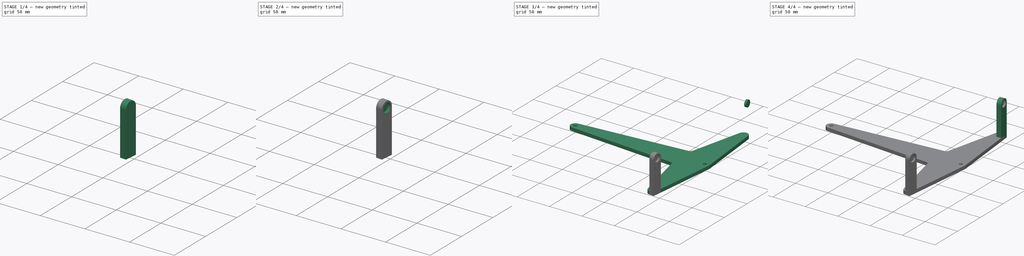
[diagram: build sequence overview — one tinted view per stage of 4, left to right]
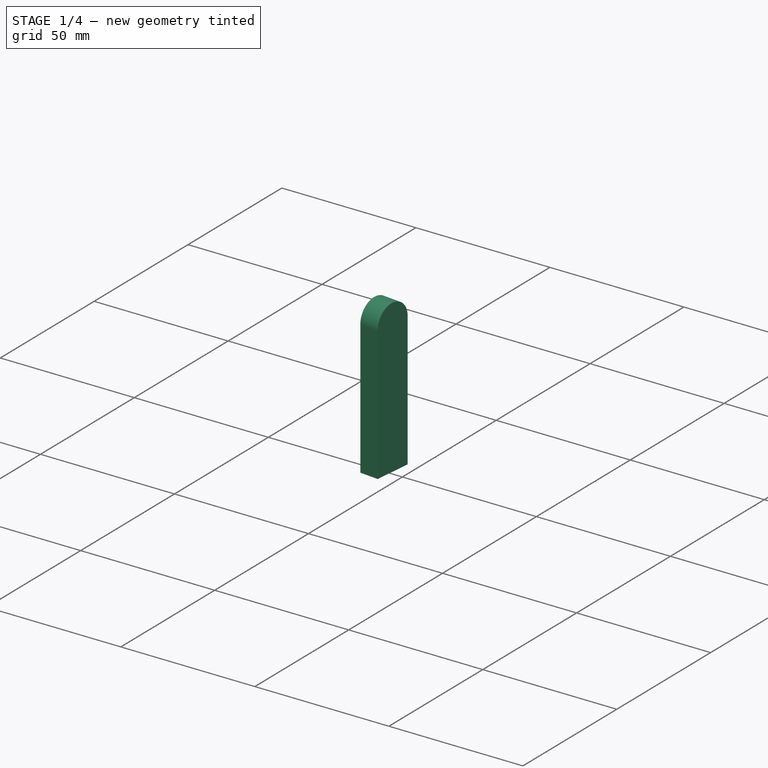
[diagram: stage 1 of 4 — iso view after this stage's code; geometry added in this stage tinted green]
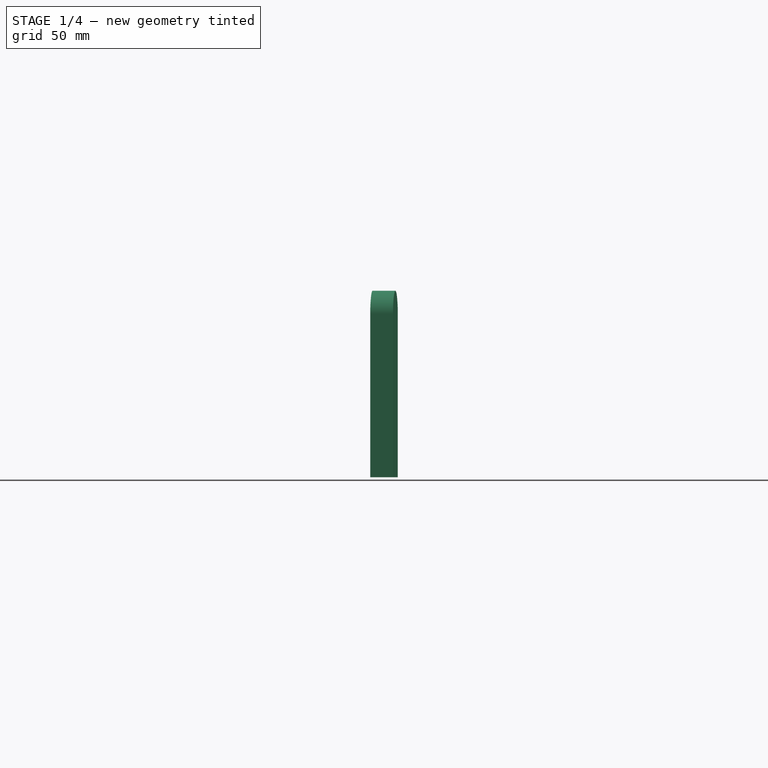
[diagram: stage 1 of 4 — front view after this stage's code; geometry added in this stage tinted green]
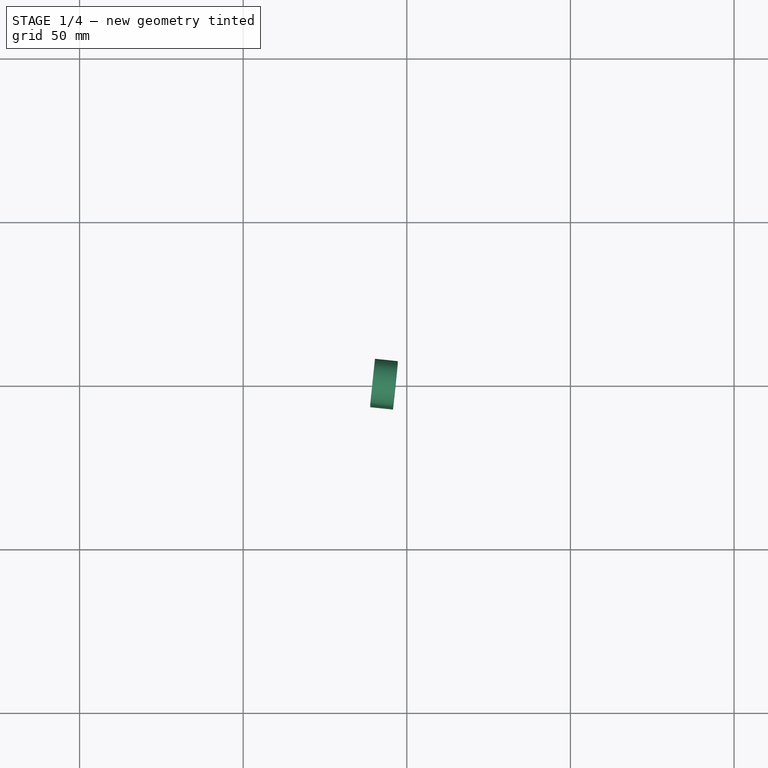
[diagram: stage 1 of 4 — top view after this stage's code; geometry added in this stage tinted green]
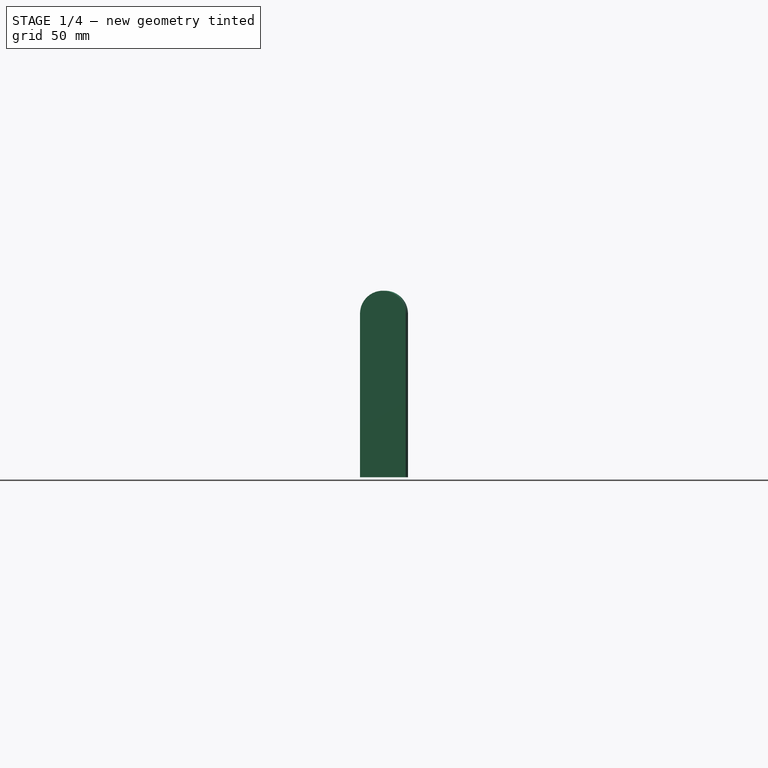
[diagram: stage 1 of 4 — right view after this stage's code; geometry added in this stage tinted green]
FCSTD DOCUMENT  (FreeCAD 0.21R33771 (Git))
Label: SFT-Mk5-Bellcrank
License: Public Domain
LicenseURL: https://en.wikipedia.org/wiki/Public_domain
objects: Sketcher::SketchObject×5, Part::Extrusion×5, PartDesign::Line×3, Part::Cut×2, Part::MultiFuse×2, PartDesign::CoordinateSystem×1, App::Part×1
note: 18 computed .brp shape members not serialized (recipe doc carries the construction recipe); baked Part::Feature solids carry a one-line shape summary decoded from their .brp

FEATURE [PartDesign::CoordinateSystem] LCS_Origin  label="Axle AP"
  AttacherType = Attacher::AttachEngine3D
  MapMode = 2
  Support = -> [X_Axis]
FEATURE [Sketcher::SketchObject] Bellcrank_Profile  label="Bellcrank Profile"
  FullyConstrained = true
  Support = -> [XY_Plane]
  sketch-geometry (17):
    g0: LineSegment StartX=0 StartY=0 StartZ=0 EndX=-10.4528 EndY=99.4522 EndZ=0
    g1: LineSegment StartX=0 StartY=0 StartZ=0 EndX=-10.4528 EndY=-99.4522 EndZ=0
    g2: LineSegment StartX=0 StartY=0 StartZ=0 EndX=-200 EndY=0 EndZ=0
    g3: ArcOfCircle CenterX=-200 CenterY=0 CenterZ=0 NormalX=0 NormalY=0 NormalZ=1 AngleXU=0 Radius=7 StartAngle=1.65162 EndAngle=4.63156
    g4: ArcOfCircle CenterX=-10.4528 CenterY=-99.4522 CenterZ=0 NormalX=0 NormalY=0 NormalZ=1 AngleXU=0 Radius=7 StartAngle=3.36901 EndAngle=6.17885
    g5: ArcOfCircle CenterX=-10.4528 CenterY=99.4522 CenterZ=0 NormalX=0 NormalY=0 NormalZ=1 AngleXU=0 Radius=7 StartAngle=0.104339 EndAngle=2.91417
    g6: LineSegment StartX=7 StartY=0 StartZ=0 EndX=-3.49092 EndY=-100.181 EndZ=0
    g7: LineSegment StartX=7 StartY=0 StartZ=0 EndX=-3.49092 EndY=100.181 EndZ=0
    g8: Circle CenterX=0 CenterY=0 CenterZ=0 NormalX=0 NormalY=0 NormalZ=1 AngleXU=0 Radius=2.6
    g9: Circle CenterX=-200 CenterY=0 CenterZ=0 NormalX=0 NormalY=0 NormalZ=1 AngleXU=0 Radius=2.6
    g10: LineSegment StartX=-40 StartY=25 StartZ=0 EndX=-40 EndY=-25 EndZ=0
    g11: ArcOfCircle CenterX=-40 CenterY=25 CenterZ=0 NormalX=0 NormalY=0 NormalZ=1 AngleXU=0 Radius=5 StartAngle=4.79322 EndAngle=6.05577
    g12: ArcOfCircle CenterX=-40 CenterY=-25 CenterZ=0 NormalX=0 NormalY=0 NormalZ=1 AngleXU=0 Radius=5 StartAngle=0.22742 EndAngle=1.48997
    g13: LineSegment StartX=-35.1287 StartY=23.8727 StartZ=0 EndX=-17.2726 EndY=101.03 EndZ=0
    g14: LineSegment StartX=-39.5963 StartY=20.0163 StartZ=0 EndX=-200.565 EndY=6.97715 EndZ=0
    g15: LineSegment StartX=-200.565 StartY=-6.97715 StartZ=0 EndX=-39.5963 EndY=-20.0163 EndZ=0
    g16: LineSegment StartX=-35.1287 StartY=-23.8727 StartZ=0 EndX=-17.2726 EndY=-101.03 EndZ=0
  constraints (40):
    c: Coincident(g0,g-1)
    c: Coincident(g1,g0)
    c: Coincident(g2,g0)
    c: PointOnObject(g2,g-1)
    c: DistanceX(g2,g2) = 200
    c: Distance(g0) = 100
    c: Equal(g0,g1)
    c: Angle(g2,g1) = 1.46608
    c: Angle(g0,g2) = 1.46608
    c: Coincident(g3,g2)
    c: Coincident(g4,g1)
    c: Radius(g3) = 7
    c: Equal(g3,g4)
    c: Coincident(g5,g0)
    c: Coincident(g7,g6)
    c: PointOnObject(g6,g-1)
    c: DistanceX(g0,g6) = 7
    c: Equal(g5,g3)
    c: Coincident(g8,g0)
    c: Radius(g8) = 2.6
    c: Coincident(g9,g3)
    c: Radius(g9) = 2.6
    c: Vertical(g10)
    c: DistanceX(g10) = -40
    c: Coincident(g11,g10)
    c: Coincident(g12,g10)
    c: Equal(g12,g11)
    c: Radius(g12) = 5
    c: Tangent(g16,g12) = 1.5708
    c: Tangent(g15,g12) = 1.5708
    c: Tangent(g15,g3) = -1.5708
    c: Tangent(g14,g3) = -1.5708
    c: Tangent(g14,g11) = 1.5708
    c: Tangent(g13,g11) = -1.5708
    c: Tangent(g13,g5) = 1.5708
    c: Tangent(g16,g4) = -1.5708
    c: Tangent(g6,g4) = 1.5708
    c: Tangent(g7,g5) = -1.5708
    c: DistanceY(g10,g10) = 50
    c: DistanceY(g11) = 25
FEATURE [Part::Extrusion] Extrude  label="Base Pad"
  Base = -> Bellcrank_Profile
  Dir = (0,0,1)
  DirMode = 2
  FaceMakerClass = Part::FaceMakerBullseye
  LengthFwd = 5
  LengthRev = 0
  Solid = true
  Symmetric = false
FEATURE [Sketcher::SketchObject] Sketch002  label="Mag Mount profile 2"
  FullyConstrained = true
  MapMode = 5
  Placement = pos=(6.92407,-0.725084,0) rot=(0.617484,0.556198,0.556198;2.03524rad)
  Support = -> [Extrude]
  expr: Constraints[5] = MagMount_profile.Constraints[6]
  expr: Constraints[6] = MagMount_profile.Constraints[7]
  sketch-geometry (4):
    g0: LineSegment StartX=-93 StartY=0 StartZ=0 EndX=-107 EndY=0 EndZ=0
    g1: LineSegment StartX=-107 StartY=0 StartZ=0 EndX=-107 EndY=50 EndZ=0
    g2: LineSegment StartX=-93 StartY=50 StartZ=0 EndX=-93 EndY=0 EndZ=0
    g3: ArcOfCircle CenterX=-100 CenterY=50 CenterZ=0 NormalX=0 NormalY=0 NormalZ=1 AngleXU=0 Radius=7 StartAngle=4e-16 EndAngle=3.14159
  constraints (11):
    c: Coincident(g0,g1)
    c: Coincident(g2,g0)
    c: Horizontal(g0)
    c: Vertical(g1)
    c: Vertical(g2)
    c: Radius(g3) = 7
    c: DistanceY(g3) = 50
    c: Tangent(g3,g2) = 1.5708
    c: Tangent(g3,g1) = 1.5708
    c: PointOnObject(g0,g-1)
    c: DistanceX(g0) = -107
FEATURE [Part::Extrusion] Extrude005  label="Mag Mount 2"
  Base = -> Sketch002
  Dir = (0.994562,-0.10415,0)
  DirMode = 2
  FaceMakerClass = Part::FaceMakerBullseye
  LengthFwd = 7
  LengthRev = 0
  Reversed = true
  Solid = true
  Symmetric = false
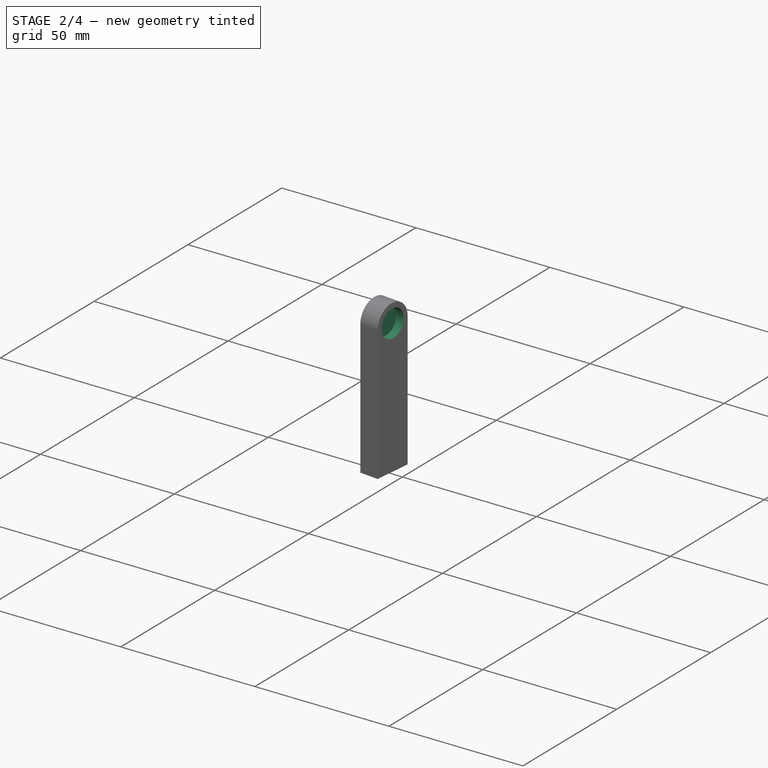
[diagram: stage 2 of 4 — iso view after this stage's code; geometry added in this stage tinted green]
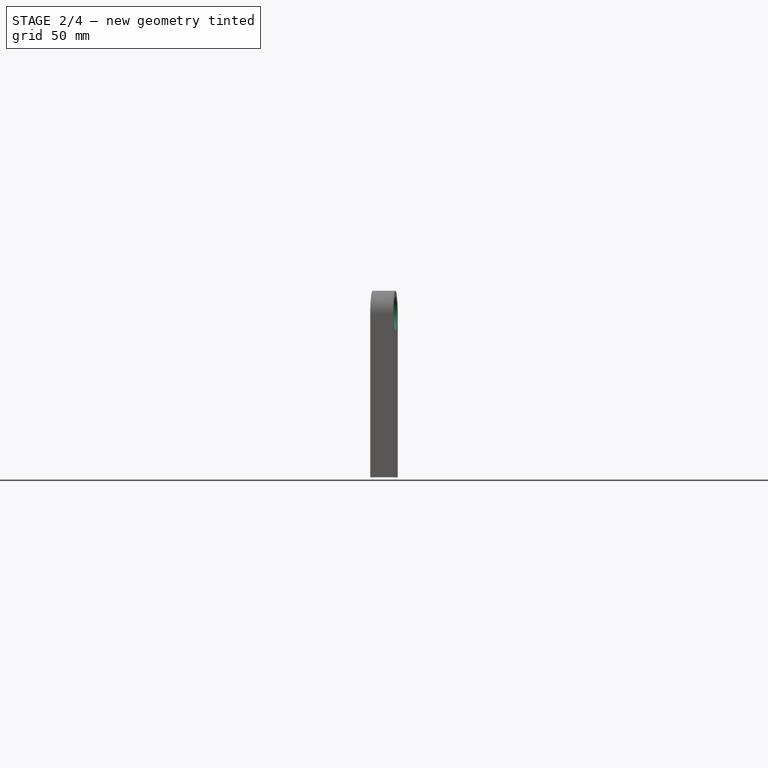
[diagram: stage 2 of 4 — front view after this stage's code; geometry added in this stage tinted green]
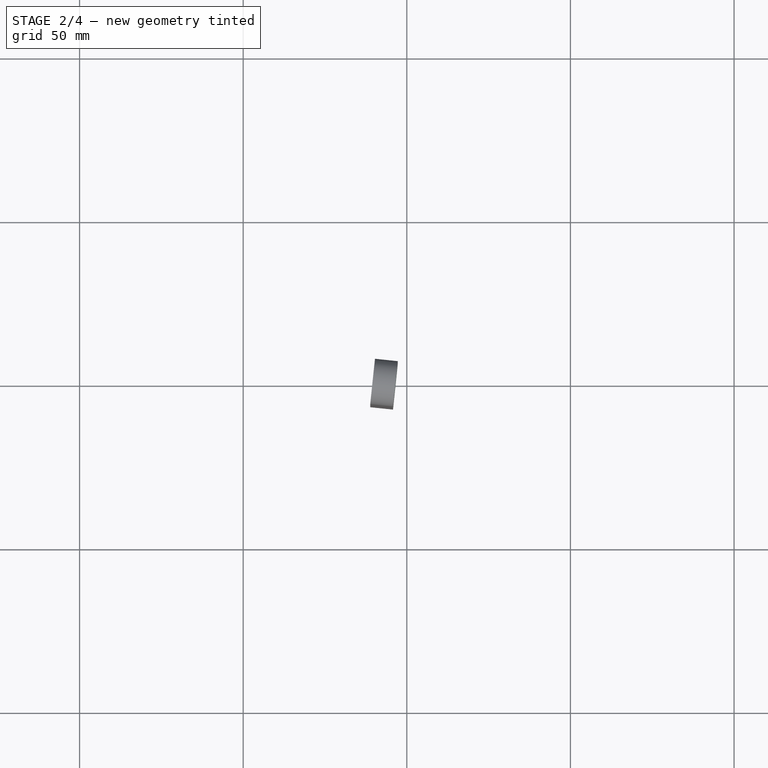
[diagram: stage 2 of 4 — top view after this stage's code; geometry added in this stage tinted green]
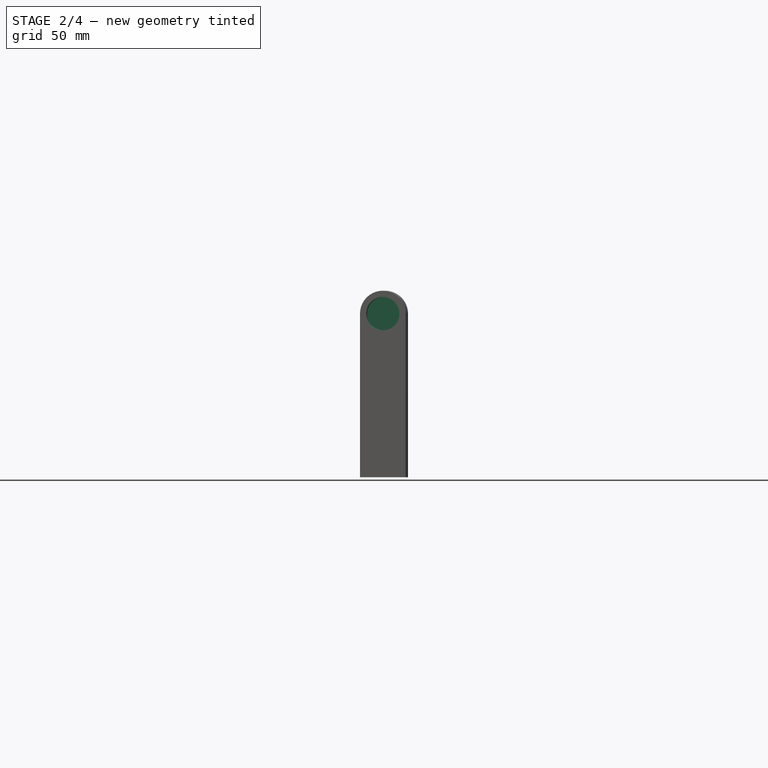
[diagram: stage 2 of 4 — right view after this stage's code; geometry added in this stage tinted green]
FEATURE [Sketcher::SketchObject] Sketch003  label="Mag Hole 2 Sketch"
  FullyConstrained = true
  MapMode = 5
  Placement = pos=(6.92407,-0.725084,0) rot=(0.617484,0.556198,0.556198;2.03524rad)
  Support = -> [Extrude005]
  sketch-geometry (1):
    g0: Circle CenterX=-100 CenterY=50 CenterZ=0 NormalX=0 NormalY=0 NormalZ=1 AngleXU=0 Radius=5.1
  constraints (3):
    c: Radius(g0) = 5.1
    c: DistanceX(g0) = -100
    c: DistanceY(g0) = 50
FEATURE [Part::Extrusion] Extrude006  label="Mag Hole 2"
  Base = -> Sketch003
  Dir = (0.994562,-0.10415,0)
  DirMode = 2
  FaceMakerClass = Part::FaceMakerBullseye
  LengthFwd = 3
  LengthRev = 0
  Reversed = true
  Solid = true
  Symmetric = false
FEATURE [Part::Cut] Cut001  label="Mag Pocket 2"
  Base = -> Extrude005
  Tool = -> Extrude006
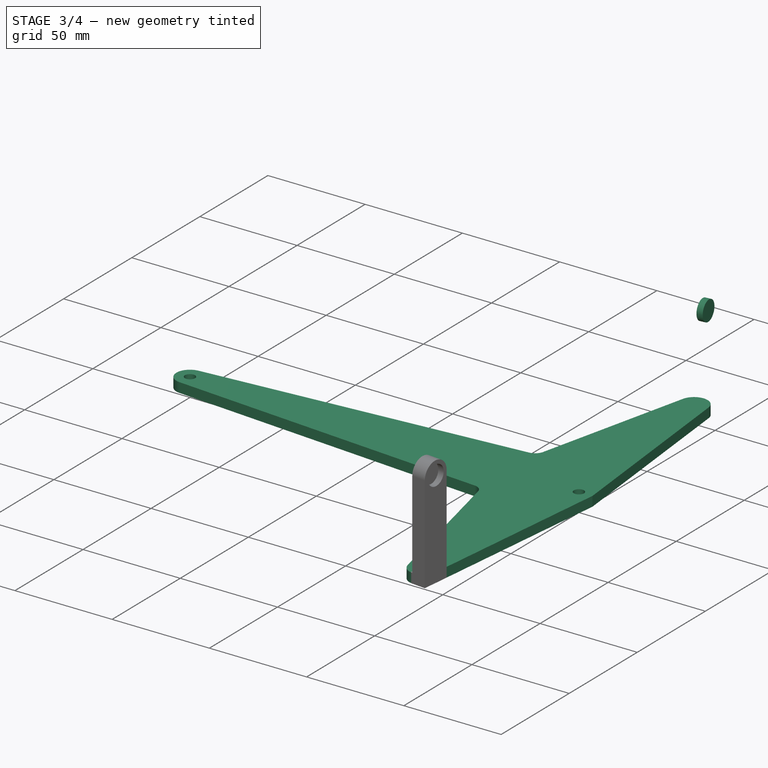
[diagram: stage 3 of 4 — iso view after this stage's code; geometry added in this stage tinted green]
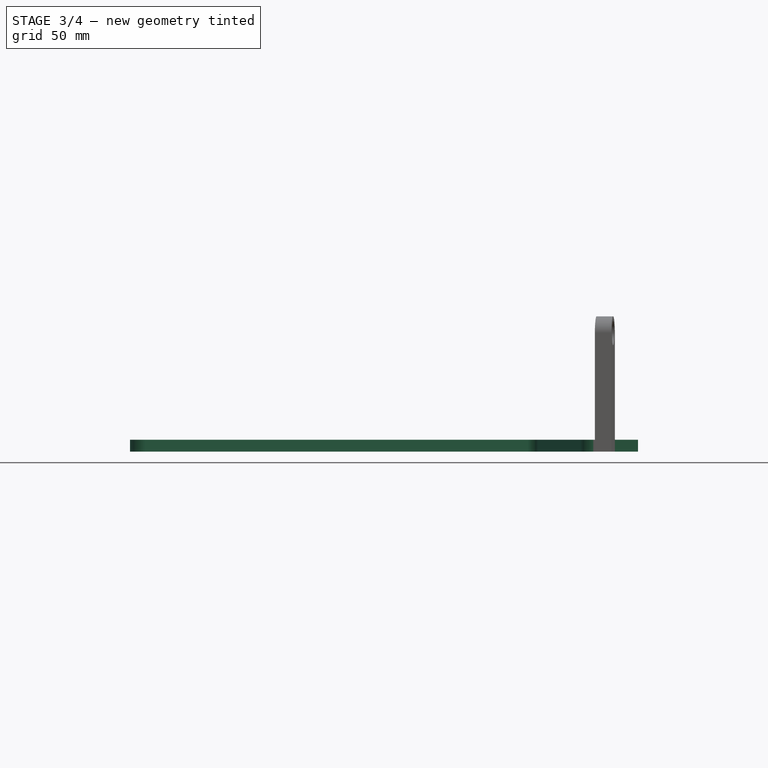
[diagram: stage 3 of 4 — front view after this stage's code; geometry added in this stage tinted green]
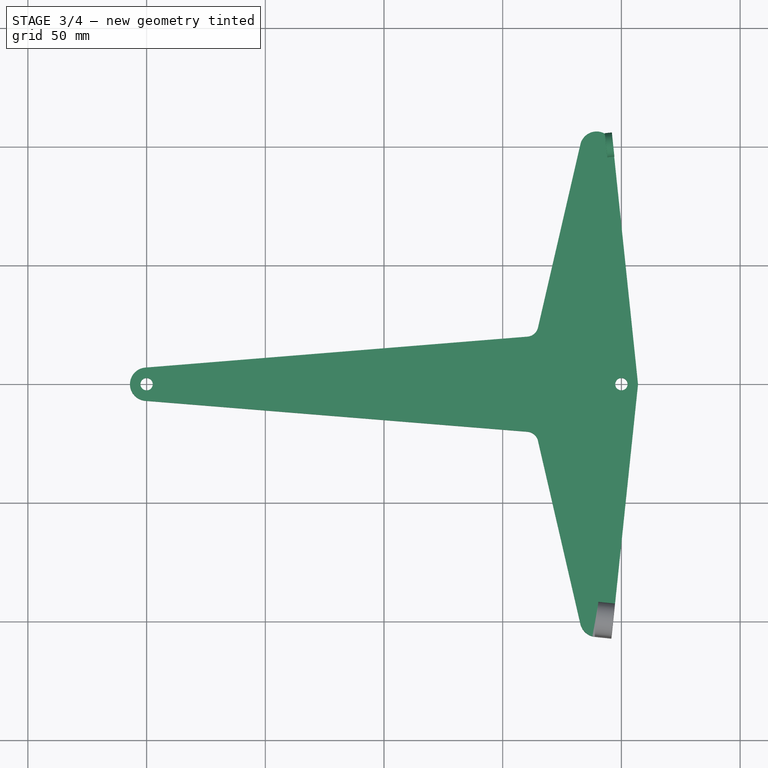
[diagram: stage 3 of 4 — top view after this stage's code; geometry added in this stage tinted green]
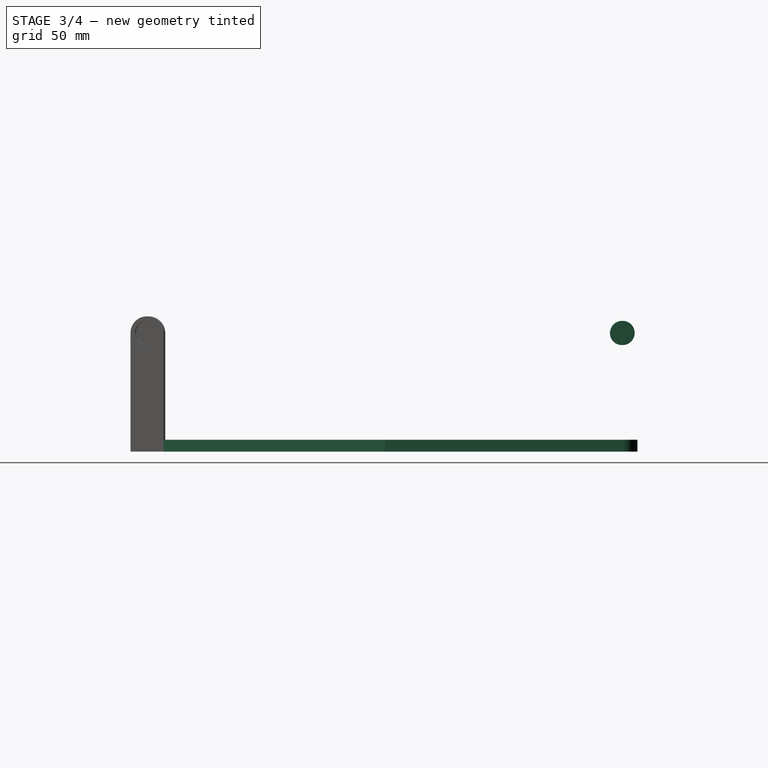
[diagram: stage 3 of 4 — right view after this stage's code; geometry added in this stage tinted green]
FEATURE [Sketcher::SketchObject] MagMount_profile  label="Mag Mount profile 1"
  FullyConstrained = true
  MapMode = 5
  Placement = pos=(6.92407,0.725084,0) rot=(0.537213,0.596407,0.596407;2.15565rad)
  Support = -> [Extrude]
  sketch-geometry (4):
    g0: LineSegment StartX=107 StartY=0 StartZ=0 EndX=93 EndY=0 EndZ=0
    g1: LineSegment StartX=93 StartY=0 StartZ=0 EndX=93 EndY=50 EndZ=0
    g2: LineSegment StartX=107 StartY=50 StartZ=0 EndX=107 EndY=0 EndZ=0
    g3: ArcOfCircle CenterX=100 CenterY=50 CenterZ=0 NormalX=0 NormalY=0 NormalZ=1 AngleXU=0 Radius=7 StartAngle=1.3e-15 EndAngle=3.14159
  constraints (11):
    c: Coincident(g0,g1)
    c: Coincident(g2,g0)
    c: Horizontal(g0)
    c: Vertical(g1)
    c: Vertical(g2)
    c: DistanceX(g0) = 107
    c: Radius(g3) = 7
    c: DistanceY(g3) = 50
    c: Tangent(g3,g2) = 1.5708
    c: Tangent(g3,g1) = 1.5708
    c: PointOnObject(g0,g-1)
FEATURE [Part::Extrusion] Extrude001  label="Mag Mount 1"
  Base = -> MagMount_profile
  Dir = (0.994562,0.10415,0)
  DirMode = 2
  FaceMakerClass = Part::FaceMakerBullseye
  LengthFwd = 7
  LengthRev = 0
  Reversed = true
  Solid = true
  Symmetric = false
FEATURE [Sketcher::SketchObject] Sketch  label="Mag Hole 1 Sketch"
  FullyConstrained = true
  MapMode = 5
  Placement = pos=(6.92407,0.725084,0) rot=(0.537213,0.596407,0.596407;2.15565rad)
  Support = -> [Extrude001]
  sketch-geometry (1):
    g0: Circle CenterX=100 CenterY=50 CenterZ=0 NormalX=0 NormalY=0 NormalZ=1 AngleXU=0 Radius=5.1
  constraints (3):
    c: Radius(g0) = 5.1
    c: DistanceX(g0) = 100
    c: DistanceY(g0) = 50
FEATURE [Part::Extrusion] Extrude004  label="Mag Hole 1"
  Base = -> Sketch
  Dir = (0.994562,0.10415,0)
  DirMode = 2
  FaceMakerClass = Part::FaceMakerBullseye
  LengthFwd = 3
  LengthRev = 0
  Reversed = true
  Solid = true
  Symmetric = false
FEATURE [Part::MultiFuse] Fusion
  Shapes = -> [Cut001,Extrude]
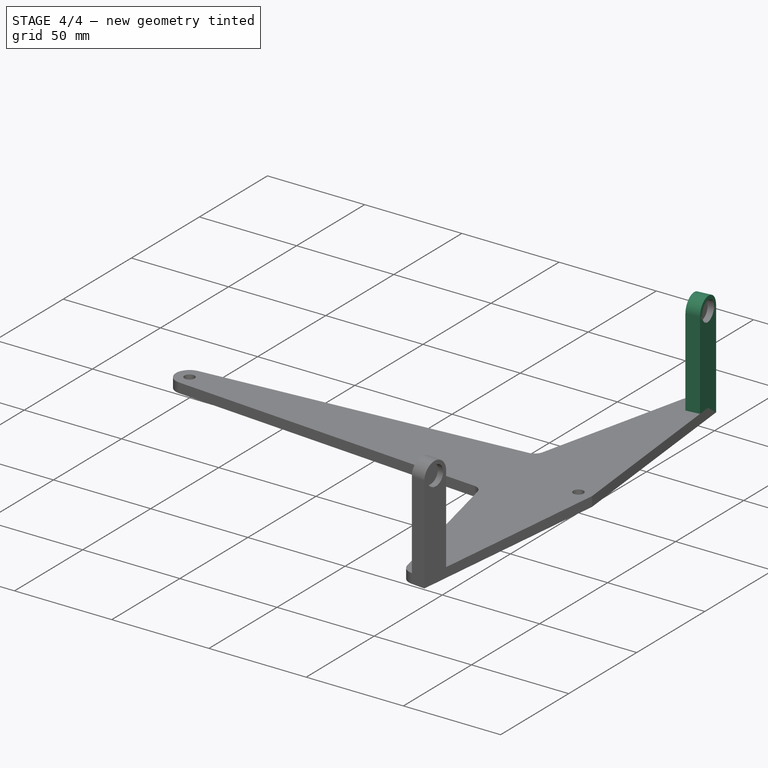
[diagram: stage 4 of 4 — iso view after this stage's code; geometry added in this stage tinted green]
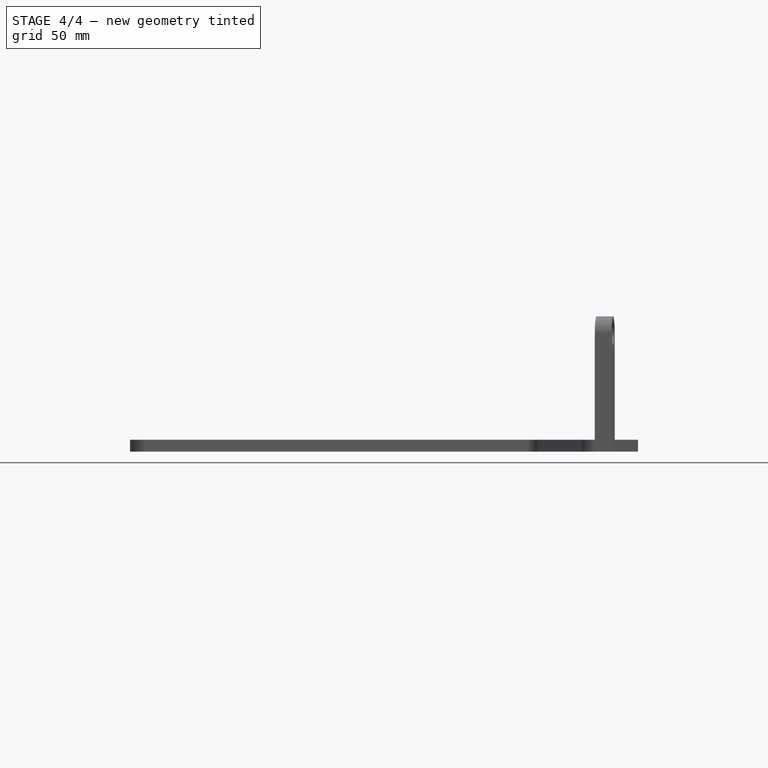
[diagram: stage 4 of 4 — front view after this stage's code; geometry added in this stage tinted green]
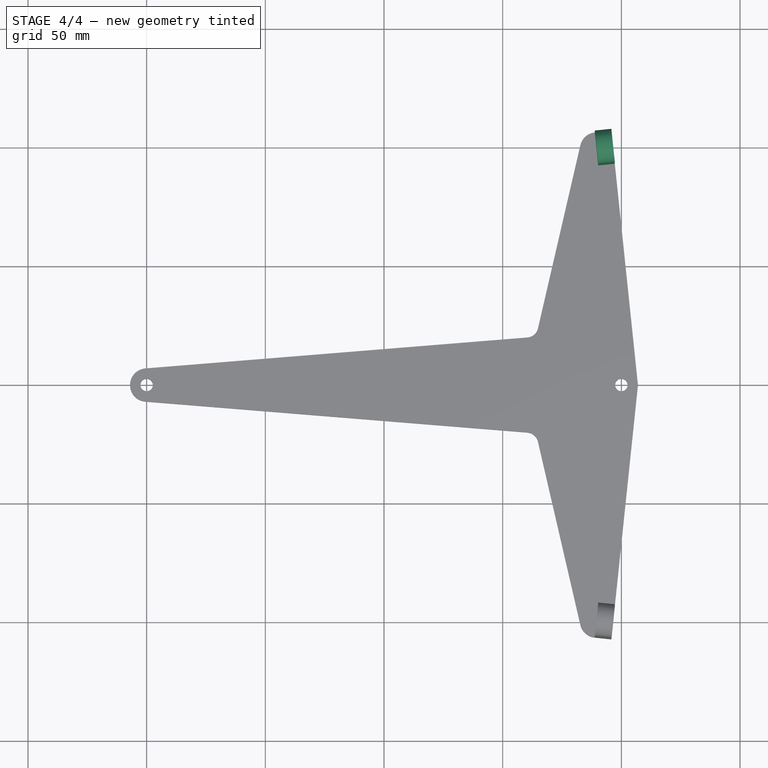
[diagram: stage 4 of 4 — top view after this stage's code; geometry added in this stage tinted green]
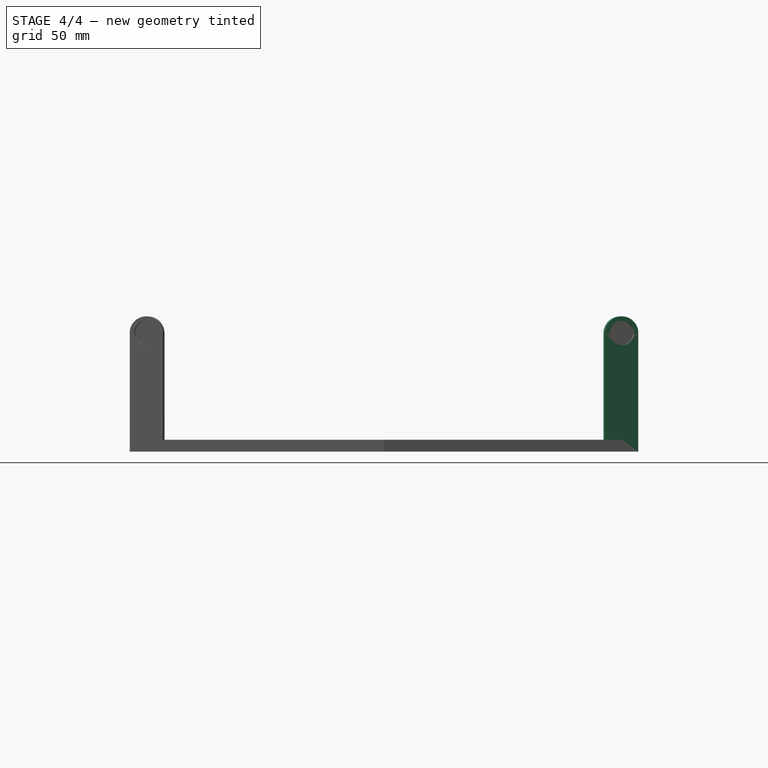
[diagram: stage 4 of 4 — right view after this stage's code; geometry added in this stage tinted green]
FEATURE [Part::Cut] Cut  label="Mag Pocket 1"
  Base = -> Extrude001
  Tool = -> Extrude004
FEATURE [Part::MultiFuse] Fusion001  label="Fused Belcrank"
  Shapes = -> [Cut,Fusion]
FEATURE [PartDesign::Line] HoleAxis_1  label="Magnet_1 AP"
  AttacherType = Attacher::AttachEngineLine
  Length = 14.3725
  MapMode = 19
  Placement = pos=(-6.4746,-99.8688,50) rot=(0.617484,0.556198,0.556198;2.03524rad)
  ResizeMode = 1
  Support = -> [Fusion001]
FEATURE [PartDesign::Line] HoleAxis_2  label="Magnet 2 AP"
  AttacherType = Attacher::AttachEngineLine
  Length = 14.3725
  MapMode = 19
  Placement = pos=(-6.4746,99.8688,50) rot=(0.537213,0.596407,0.596407;2.15565rad)
  ResizeMode = 1
  Support = -> [Fusion001]
FEATURE [PartDesign::Line] HoleAxis_3  label="Pushrod AP"
  AttacherType = Attacher::AttachEngineLine
  Length = 7.32715
  MapMode = 19
  Placement = pos=(-200,0,5) rot=(0,0,1;0rad)
  ResizeMode = 1
  Support = -> [Fusion001]
FEATURE [App::Part] Bellcrank
  Group = -> [LCS_Origin,Sketch003,Extrude006,Bellcrank_Profile,Extrude,Fusion,Extrude004,MagMount_profile,Sketch,Cut001,Extrude005,Cut,Extrude001,Sketch002,Fusion001,HoleAxis_1,HoleAxis_2,HoleAxis_3]
  Origin = -> Origin
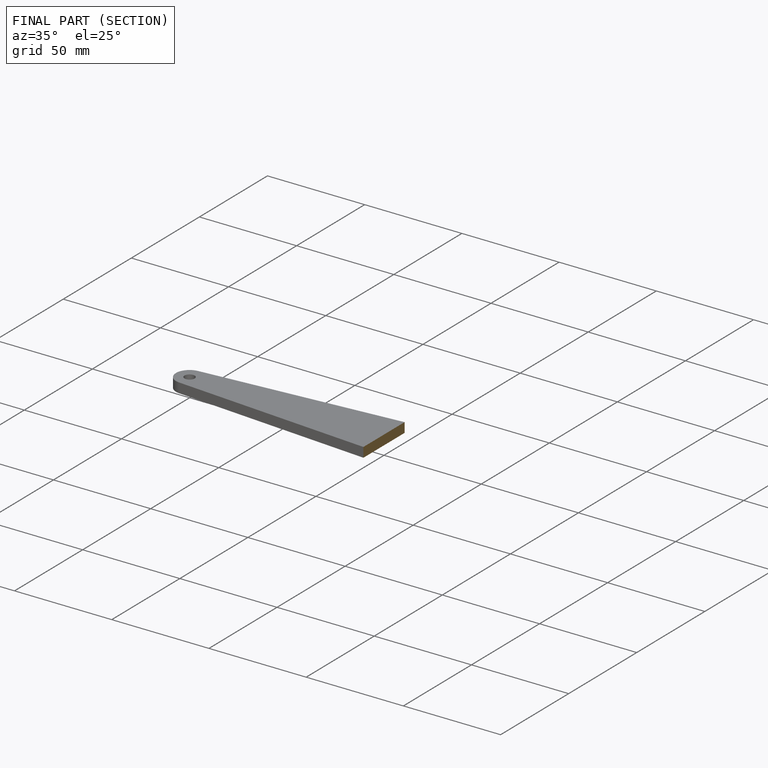
[diagram: finished part — half-section view (interior)]
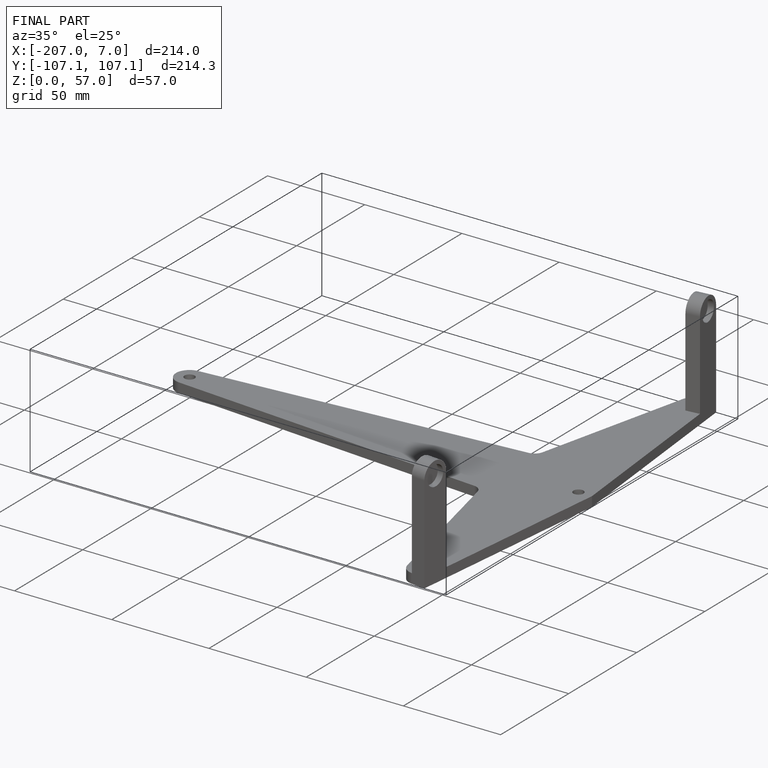
[diagram: finished part — iso view with bounding-box wireframe]
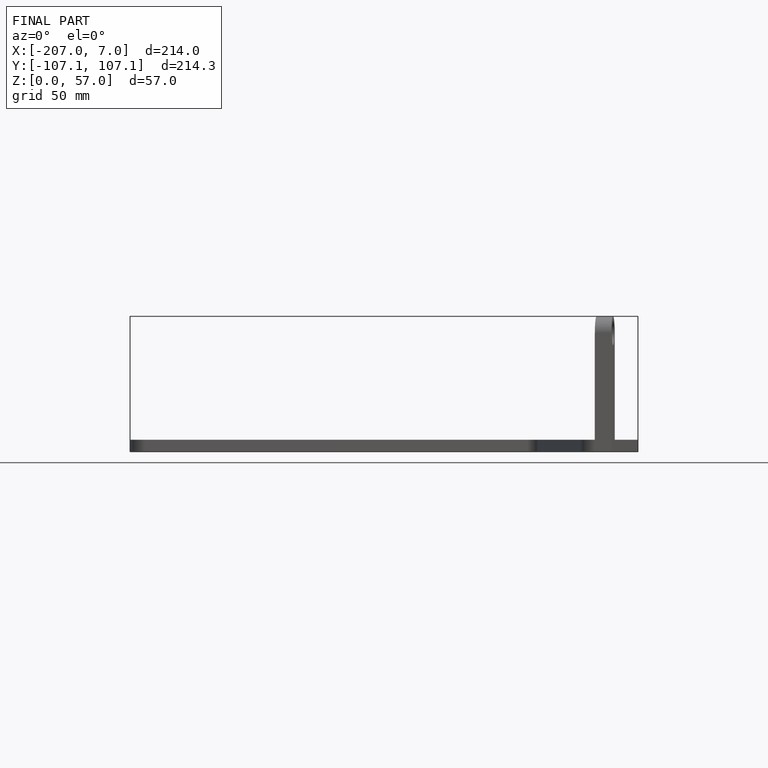
[diagram: finished part — front view with bounding-box wireframe]
